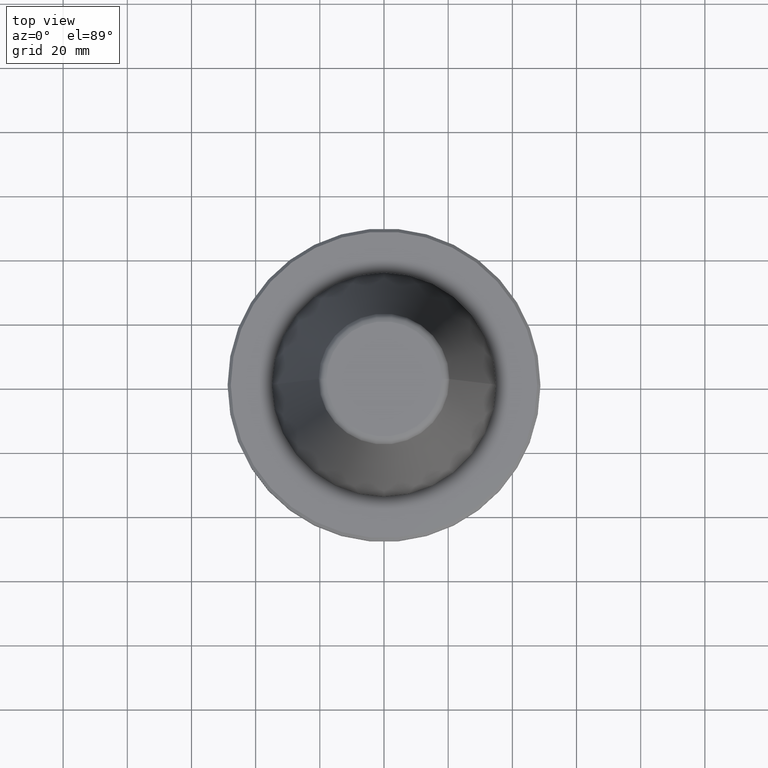
[diagram: clean part render]
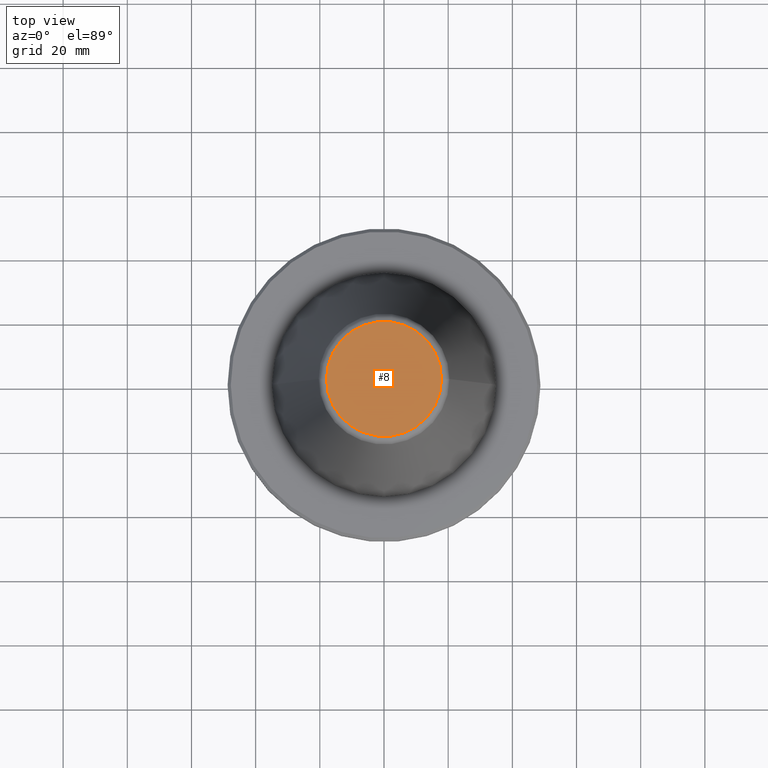
[diagram: same view with one face highlighted and labeled with its STEP entity id]
A machine part, top view. The second image highlights one B-rep face of the part: STEP entity #8.
In plain terms, the highlighted planar face has unit normal (0, 0, -1).
Its self-contained STEP definition (entity closure, byte-faithful):
#8 = ADVANCED_FACE ( 'NONE', ( #663 ), #669, .F. ) ;
#18 = EDGE_CURVE ( 'NONE', #886, #219, #463, .T. ) ;
#219 = VERTEX_POINT ( 'NONE', #983 ) ;
#247 = DIRECTION ( 'NONE',  ( 1.000000000000000000, 0.0000000000000000000, 0.0000000000000000000 ) ) ;
#279 = DIRECTION ( 'NONE',  ( -1.000000000000000000, 0.0000000000000000000, -0.0000000000000000000 ) ) ;
#285 = DIRECTION ( 'NONE',  ( -0.0000000000000000000, -0.0000000000000000000, 1.000000000000000000 ) ) ;
#296 = AXIS2_PLACEMENT_3D ( 'NONE', #833, #697, #279 ) ;
#304 = AXIS2_PLACEMENT_3D ( 'NONE', #337, #792, #247 ) ;
#337 = CARTESIAN_POINT ( 'NONE',  ( 0.0000000000000000000, 0.0000000000000000000, 101.7500000000000900 ) ) ;
#344 = CIRCLE ( 'NONE', #304, 17.92446055806129500 ) ;
#347 = ORIENTED_EDGE ( 'NONE', *, *, #18, .T. ) ;
#434 = DIRECTION ( 'NONE',  ( 1.000000000000000000, 0.0000000000000000000, 0.0000000000000000000 ) ) ;
#440 = AXIS2_PLACEMENT_3D ( 'NONE', #752, #285, #434 ) ;
#463 = CIRCLE ( 'NONE', #440, 17.92446055806129500 ) ;
#543 = EDGE_CURVE ( 'NONE', #219, #886, #344, .T. ) ;
#576 = EDGE_LOOP ( 'NONE', ( #958, #347 ) ) ;
#663 = FACE_OUTER_BOUND ( 'NONE', #576, .T. ) ;
#669 = PLANE ( 'NONE',  #296 ) ;
#697 = DIRECTION ( 'NONE',  ( 0.0000000000000000000, 0.0000000000000000000, -1.000000000000000000 ) ) ;
#752 = CARTESIAN_POINT ( 'NONE',  ( 0.0000000000000000000, 0.0000000000000000000, 101.7500000000000900 ) ) ;
#792 = DIRECTION ( 'NONE',  ( -0.0000000000000000000, -0.0000000000000000000, 1.000000000000000000 ) ) ;
#833 = CARTESIAN_POINT ( 'NONE',  ( 0.0000000000000000000, 17.92446055806129500, 101.7500000000000100 ) ) ;
#886 = VERTEX_POINT ( 'NONE', #910 ) ;
#910 = CARTESIAN_POINT ( 'NONE',  ( -17.92446055806129500, 2.346591844926584100E-015, 101.7500000000000900 ) ) ;
#958 = ORIENTED_EDGE ( 'NONE', *, *, #543, .T. ) ;
#983 = CARTESIAN_POINT ( 'NONE',  ( 17.92446055806129500, 0.0000000000000000000, 101.7500000000000900 ) ) ;